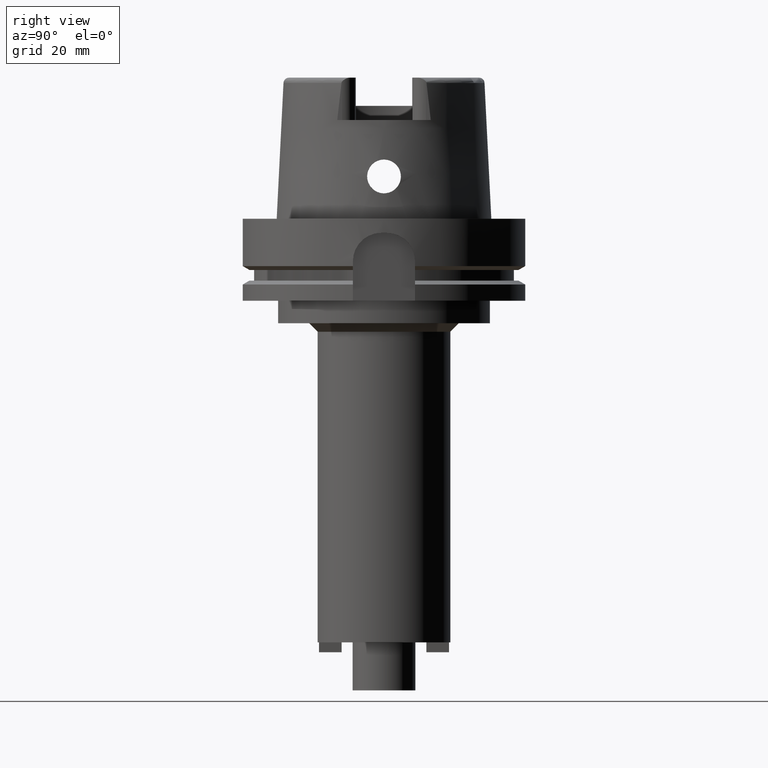
[diagram: clean part render]
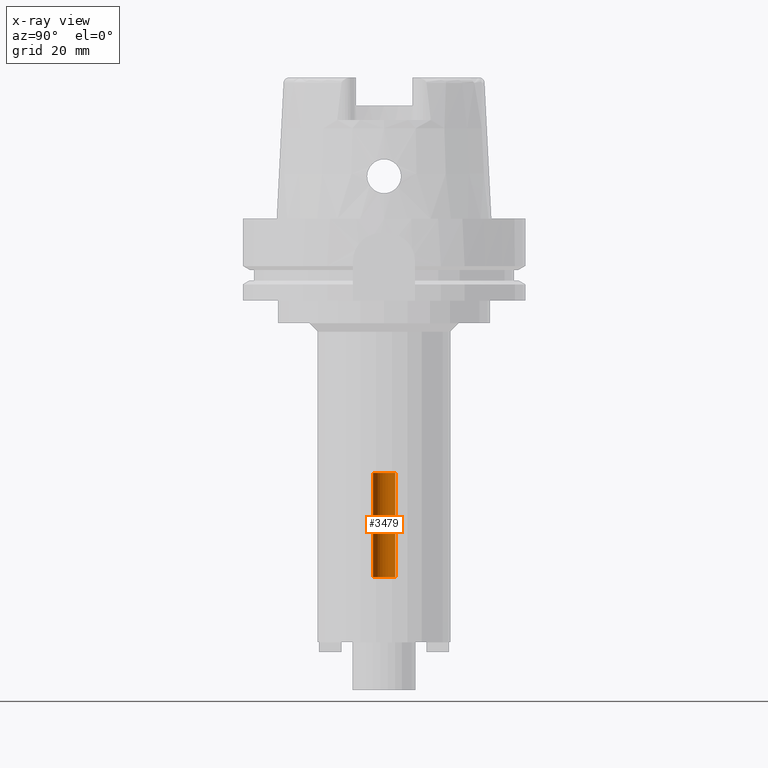
[diagram: x-ray — body ghosted, one internal face saturated and labeled with its STEP entity id]
A machine part, right view, then the same camera in x-ray: the body is ghosted and one INTERNAL B-rep face — a face not visible from any outside direction — is saturated and labeled: STEP entity #3479.
In plain terms, the highlighted cylindrical surface (edge-blend (fillet) strip) has radius 4 mm, axis along (0, 0, 1).
Its self-contained STEP definition (entity closure, byte-faithful):
#945=CARTESIAN_POINT('',(0.E0,0.E0,-9.E1));
#946=DIRECTION('',(0.E0,0.E0,1.E0));
#947=DIRECTION('',(0.E0,1.E0,0.E0));
#948=AXIS2_PLACEMENT_3D('',#945,#946,#947);
#953=DIRECTION('',(0.E0,0.E0,1.E0));
#954=VECTOR('',#953,3.7E1);
#955=CARTESIAN_POINT('',(0.E0,4.E0,-1.27E2));
#956=LINE('',#955,#954);
#960=DIRECTION('',(0.E0,0.E0,1.E0));
#961=VECTOR('',#960,3.7E1);
#962=CARTESIAN_POINT('',(0.E0,-4.E0,-1.27E2));
#963=LINE('',#962,#961);
#983=CARTESIAN_POINT('',(0.E0,0.E0,-1.27E2));
#984=DIRECTION('',(0.E0,0.E0,-1.E0));
#985=DIRECTION('',(0.E0,-1.E0,0.E0));
#986=AXIS2_PLACEMENT_3D('',#983,#984,#985);
#2581=CARTESIAN_POINT('',(0.E0,-4.E0,-9.E1));
#2582=CARTESIAN_POINT('',(0.E0,4.E0,-9.E1));
#2583=VERTEX_POINT('',#2581);
#2584=VERTEX_POINT('',#2582);
#2585=CARTESIAN_POINT('',(0.E0,4.E0,-1.27E2));
#2586=VERTEX_POINT('',#2585);
#2587=CARTESIAN_POINT('',(0.E0,-4.E0,-1.27E2));
#2588=VERTEX_POINT('',#2587);
#3467=CARTESIAN_POINT('',(0.E0,0.E0,-1.7785E2));
#3468=DIRECTION('',(0.E0,0.E0,1.E0));
#3469=DIRECTION('',(0.E0,1.E0,0.E0));
#3470=AXIS2_PLACEMENT_3D('',#3467,#3468,#3469);
#3471=CYLINDRICAL_SURFACE('',#3470,4.E0);
#3472=ORIENTED_EDGE('',*,*,#3457,.F.);
#3474=ORIENTED_EDGE('',*,*,#3473,.F.);
#3475=ORIENTED_EDGE('',*,*,#3460,.T.);
#3476=ORIENTED_EDGE('',*,*,#3447,.F.);
#3477=EDGE_LOOP('',(#3472,#3474,#3475,#3476));
#3478=FACE_OUTER_BOUND('',#3477,.F.);
#949=CIRCLE('',#948,4.E0);
#987=CIRCLE('',#986,4.E0);
#3447=EDGE_CURVE('',#2584,#2583,#949,.T.);
#3457=EDGE_CURVE('',#2586,#2584,#956,.T.);
#3460=EDGE_CURVE('',#2588,#2583,#963,.T.);
#3473=EDGE_CURVE('',#2588,#2586,#987,.T.);
#3479=ADVANCED_FACE('',(#3478),#3471,.F.);